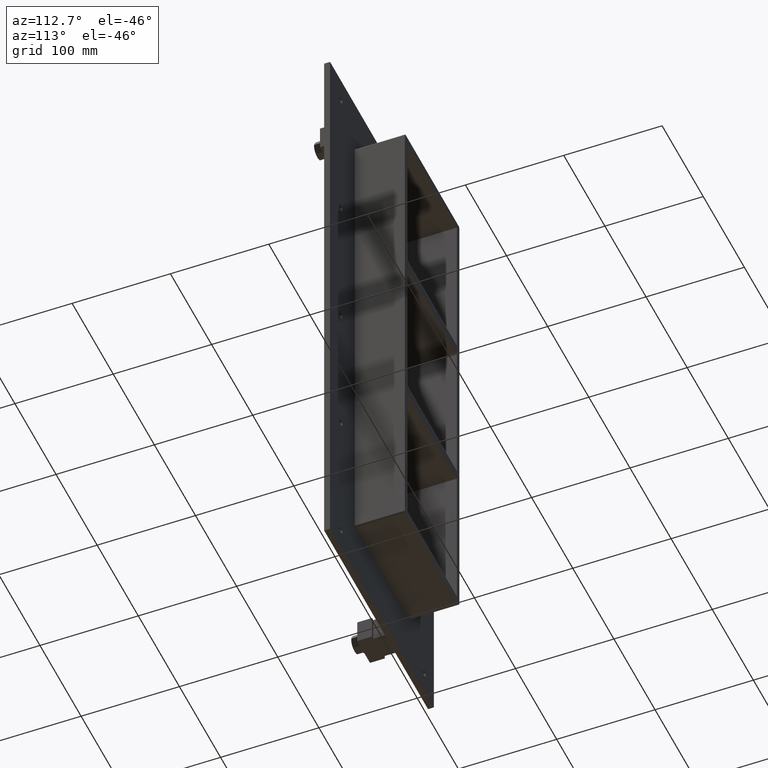
[diagram: clean part render]
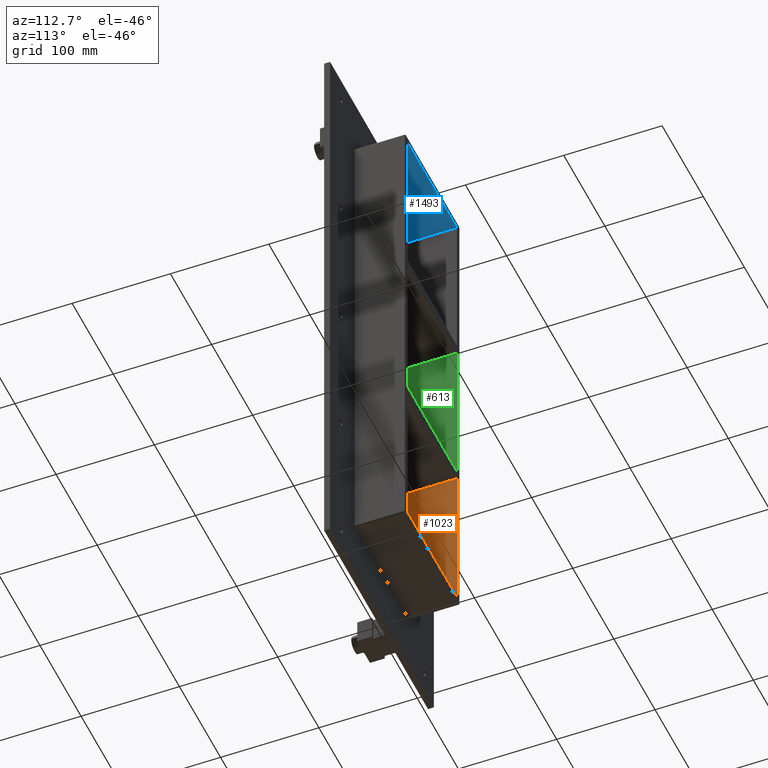
[diagram: same view with three faces highlighted in distinct colors, each labeled with its STEP entity id]
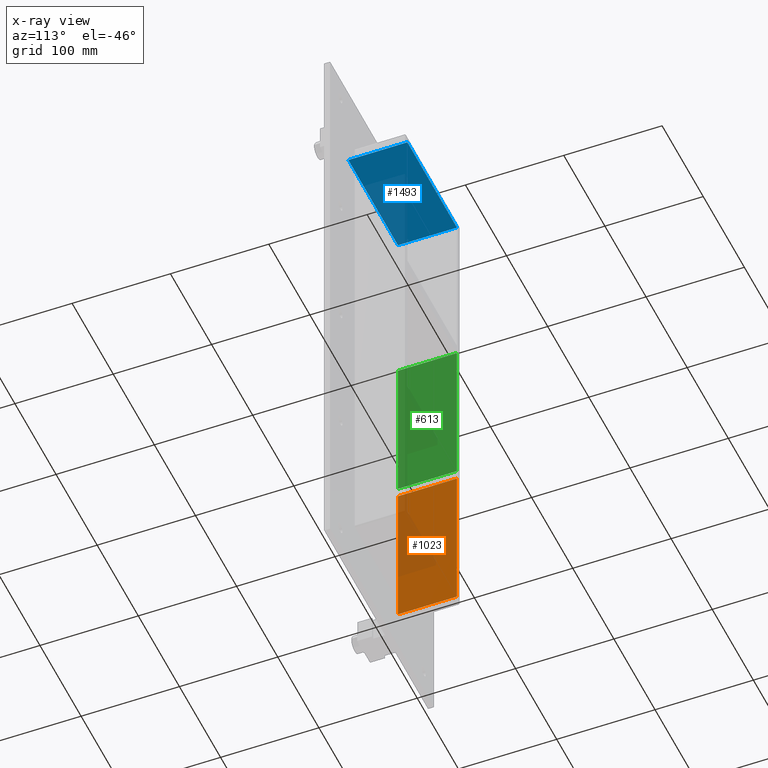
[diagram: x-ray of the same camera — body ghosted, the three highlighted faces saturated]
A machine part, auxiliary view with three faces highlighted in distinct colors.
The next image is the same camera in x-ray (body ghosted, the three faces saturated) — at least one of them is partly hidden behind the body in this view.
Their STEP definitions:

[orange] entity #1023 — the highlighted planar face has unit normal (-1, 0, 0).
#528=CARTESIAN_POINT('',(-60.249999999998735,-3.0,-89.750000000011596));
#529=VERTEX_POINT('',#528);
#536=CARTESIAN_POINT('',(-60.249999999998735,57.0,-89.750000000011596));
#537=VERTEX_POINT('',#536);
#538=CARTESIAN_POINT('',(-60.249999999999993,57.000000000000007,-89.75000000001161));
#539=DIRECTION('',(0.0,-1.0,0.0));
#540=VECTOR('',#539,60.000000000000007);
#541=LINE('',#538,#540);
#542=EDGE_CURVE('',#537,#529,#541,.T.);
#993=CARTESIAN_POINT('',(-60.249999999999993,0.0,-249.25));
#994=DIRECTION('',(-1.0,0.0,0.0));
#995=DIRECTION('',(0.0,0.0,1.0));
#996=AXIS2_PLACEMENT_3D('',#993,#994,#995);
#997=PLANE('',#996);
#998=ORIENTED_EDGE('',*,*,#542,.T.);
#999=CARTESIAN_POINT('',(-60.249999999999993,-3.0,-249.25));
#1000=VERTEX_POINT('',#999);
#1001=CARTESIAN_POINT('',(-60.249999999999993,-3.0,-249.25));
#1002=DIRECTION('',(0.0,0.0,1.0));
#1003=VECTOR('',#1002,159.4999999999884);
#1004=LINE('',#1001,#1003);
#1005=EDGE_CURVE('',#1000,#529,#1004,.T.);
#1006=ORIENTED_EDGE('',*,*,#1005,.F.);
#1007=CARTESIAN_POINT('',(-60.249999999999993,57.0,-249.25));
#1008=VERTEX_POINT('',#1007);
#1009=CARTESIAN_POINT('',(-60.249999999999993,-3.0,-249.25));
#1010=DIRECTION('',(0.0,1.0,0.0));
#1011=VECTOR('',#1010,60.0);
#1012=LINE('',#1009,#1011);
#1013=EDGE_CURVE('',#1000,#1008,#1012,.T.);
#1014=ORIENTED_EDGE('',*,*,#1013,.T.);
#1015=CARTESIAN_POINT('',(-60.249999999999993,57.0,-89.750000000011596));
#1016=DIRECTION('',(0.0,0.0,-1.0));
#1017=VECTOR('',#1016,159.4999999999884);
#1018=LINE('',#1015,#1017);
#1019=EDGE_CURVE('',#537,#1008,#1018,.T.);
#1020=ORIENTED_EDGE('',*,*,#1019,.F.);
#1021=EDGE_LOOP('',(#998,#1006,#1014,#1020));
#1022=FACE_OUTER_BOUND('',#1021,.T.);
#1023=ADVANCED_FACE('',(#1022),#997,.F.);

[blue] entity #1493 — the highlighted planar face has unit normal (0, 0, 1).
#434=CARTESIAN_POINT('',(-60.249999999999993,57.0,249.25));
#435=VERTEX_POINT('',#434);
#442=CARTESIAN_POINT('',(-60.249999999999993,-3.0,249.25));
#443=VERTEX_POINT('',#442);
#444=CARTESIAN_POINT('',(-60.249999999999993,-3.0,249.25));
#445=DIRECTION('',(0.0,1.0,0.0));
#446=VECTOR('',#445,60.0);
#447=LINE('',#444,#446);
#448=EDGE_CURVE('',#443,#435,#447,.T.);
#496=CARTESIAN_POINT('',(60.249999999999993,-3.0,249.25));
#497=VERTEX_POINT('',#496);
#504=CARTESIAN_POINT('',(60.249999999999993,57.0,249.25));
#505=VERTEX_POINT('',#504);
#506=CARTESIAN_POINT('',(60.249999999999993,-3.0,249.25));
#507=DIRECTION('',(0.0,1.0,0.0));
#508=VECTOR('',#507,60.0);
#509=LINE('',#506,#508);
#510=EDGE_CURVE('',#497,#505,#509,.T.);
#1407=CARTESIAN_POINT('',(-60.249999999999993,-3.0,249.25));
#1408=DIRECTION('',(1.0,0.0,0.0));
#1409=VECTOR('',#1408,120.5);
#1410=LINE('',#1407,#1409);
#1411=EDGE_CURVE('',#443,#497,#1410,.T.);
#1477=CARTESIAN_POINT('',(-60.249999999999993,0.0,249.25));
#1478=DIRECTION('',(0.0,0.0,1.0));
#1479=DIRECTION('',(1.0,0.0,0.0));
#1480=AXIS2_PLACEMENT_3D('',#1477,#1478,#1479);
#1481=PLANE('',#1480);
#1482=ORIENTED_EDGE('',*,*,#448,.T.);
#1483=CARTESIAN_POINT('',(60.25,57.0,249.25));
#1484=DIRECTION('',(-1.0,0.0,0.0));
#1485=VECTOR('',#1484,120.5);
#1486=LINE('',#1483,#1485);
#1487=EDGE_CURVE('',#505,#435,#1486,.T.);
#1488=ORIENTED_EDGE('',*,*,#1487,.F.);
#1489=ORIENTED_EDGE('',*,*,#510,.F.);
#1490=ORIENTED_EDGE('',*,*,#1411,.F.);
#1491=EDGE_LOOP('',(#1482,#1488,#1489,#1490));
#1492=FACE_OUTER_BOUND('',#1491,.T.);
#1493=ADVANCED_FACE('',(#1492),#1481,.F.);

[green] entity #613 — the highlighted planar face has unit normal (-1, 0, 0).
#355=CARTESIAN_POINT('',(-60.249999999998735,-3.0,79.749999999988432));
#356=VERTEX_POINT('',#355);
#363=CARTESIAN_POINT('',(-60.249999999998735,57.0,79.749999999988432));
#364=VERTEX_POINT('',#363);
#365=CARTESIAN_POINT('',(-60.249999999999993,57.000000000000007,79.749999999988447));
#366=DIRECTION('',(0.0,-1.0,0.0));
#367=VECTOR('',#366,60.000000000000007);
#368=LINE('',#365,#367);
#369=EDGE_CURVE('',#364,#356,#368,.T.);
#566=CARTESIAN_POINT('',(-60.249999999998735,-3.0,-79.750000000000227));
#567=VERTEX_POINT('',#566);
#575=CARTESIAN_POINT('',(-60.249999999998735,57.0,-79.750000000000227));
#576=VERTEX_POINT('',#575);
#583=CARTESIAN_POINT('',(-60.249999999999993,-3.0,-79.750000000000213));
#584=DIRECTION('',(0.0,1.0,0.0));
#585=VECTOR('',#584,60.000000000000007);
#586=LINE('',#583,#585);
#587=EDGE_CURVE('',#567,#576,#586,.T.);
#592=CARTESIAN_POINT('',(-60.249999999999993,0.0,-249.25));
#593=DIRECTION('',(-1.0,0.0,0.0));
#594=DIRECTION('',(0.0,0.0,1.0));
#595=AXIS2_PLACEMENT_3D('',#592,#593,#594);
#596=PLANE('',#595);
#597=ORIENTED_EDGE('',*,*,#369,.T.);
#598=CARTESIAN_POINT('',(-60.249999999999993,-3.0,-79.750000000000227));
#599=DIRECTION('',(0.0,0.0,1.0));
#600=VECTOR('',#599,159.49999999998863);
#601=LINE('',#598,#600);
#602=EDGE_CURVE('',#567,#356,#601,.T.);
#603=ORIENTED_EDGE('',*,*,#602,.F.);
#604=ORIENTED_EDGE('',*,*,#587,.T.);
#605=CARTESIAN_POINT('',(-60.249999999999993,57.0,79.749999999988404));
#606=DIRECTION('',(0.0,0.0,-1.0));
#607=VECTOR('',#606,159.49999999998863);
#608=LINE('',#605,#607);
#609=EDGE_CURVE('',#364,#576,#608,.T.);
#610=ORIENTED_EDGE('',*,*,#609,.F.);
#611=EDGE_LOOP('',(#597,#603,#604,#610));
#612=FACE_OUTER_BOUND('',#611,.T.);
#613=ADVANCED_FACE('',(#612),#596,.F.);